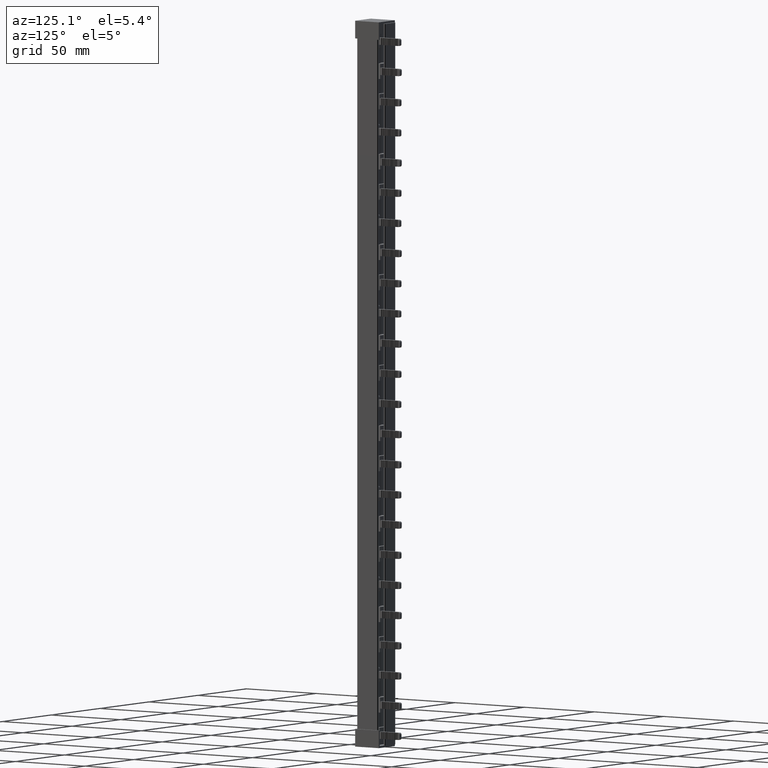
[diagram: clean part render]
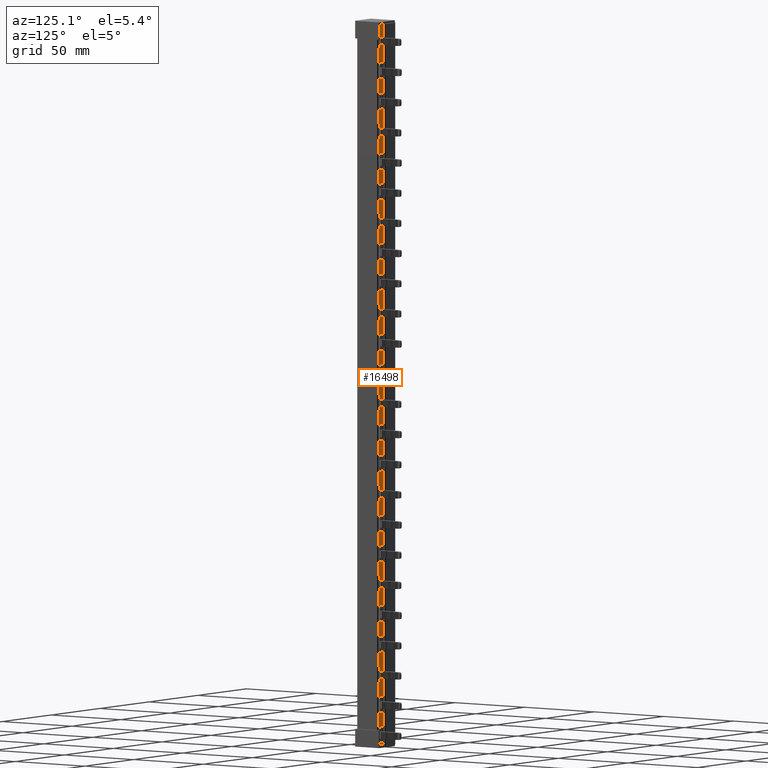
[diagram: same view with one face highlighted and labeled with its STEP entity id]
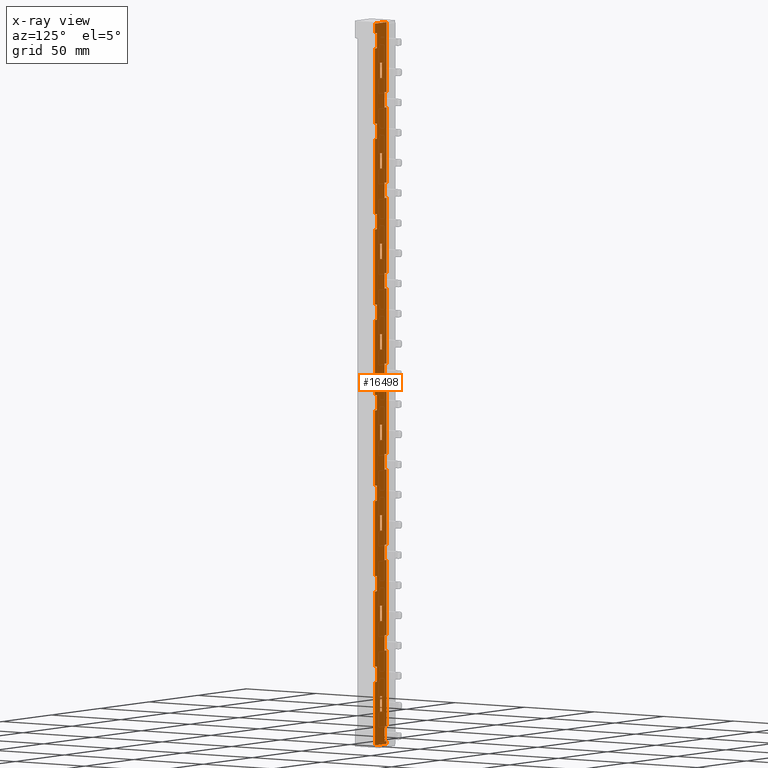
[diagram: x-ray of the same camera — body ghosted, the highlighted face saturated]
A machine part, auxiliary view. The second image highlights one B-rep face of the part: STEP entity #16498.
The next image is the same camera in x-ray: the body ghosted, the highlighted face saturated — about 0% of this face is hidden behind the body in this view.
In plain terms, the highlighted planar face has unit normal (0, -1, 0).
Its self-contained STEP definition (entity closure, byte-faithful):
#2613 = VECTOR ( 'NONE', #3913, 1000.000000000000000 ) ;
#2828 = VECTOR ( 'NONE', #3952, 1000.000000000000000 ) ;
#2878 = VECTOR ( 'NONE', #3926, 1000.000000000000000 ) ;
#2885 = VECTOR ( 'NONE', #3956, 1000.000000000000000 ) ;
#2886 = VECTOR ( 'NONE', #3990, 1000.000000000000000 ) ;
#2887 = VECTOR ( 'NONE', #3998, 1000.000000000000000 ) ;
#2888 = VECTOR ( 'NONE', #3960, 1000.000000000000000 ) ;
#2892 = VECTOR ( 'NONE', #3980, 1000.000000000000000 ) ;
#2893 = VECTOR ( 'NONE', #4123, 1000.000000000000000 ) ;
#2894 = VECTOR ( 'NONE', #4126, 1000.000000000000000 ) ;
#2896 = VECTOR ( 'NONE', #3995, 1000.000000000000000 ) ;
#2902 = VECTOR ( 'NONE', #3987, 1000.000000000000000 ) ;
#2903 = VECTOR ( 'NONE', #4068, 1000.000000000000000 ) ;
#2904 = VECTOR ( 'NONE', #4059, 1000.000000000000000 ) ;
#2907 = VECTOR ( 'NONE', #4051, 1000.000000000000000 ) ;
#2910 = VECTOR ( 'NONE', #4070, 1000.000000000000000 ) ;
#2911 = VECTOR ( 'NONE', #3996, 1000.000000000000000 ) ;
#2913 = VECTOR ( 'NONE', #4037, 1000.000000000000000 ) ;
#2916 = VECTOR ( 'NONE', #4047, 1000.000000000000000 ) ;
#2919 = VECTOR ( 'NONE', #4069, 1000.000000000000000 ) ;
#2920 = VECTOR ( 'NONE', #4099, 1000.000000000000000 ) ;
#2921 = VECTOR ( 'NONE', #4081, 1000.000000000000000 ) ;
#2922 = VECTOR ( 'NONE', #4097, 1000.000000000000000 ) ;
#2924 = VECTOR ( 'NONE', #4127, 1000.000000000000000 ) ;
#2926 = VECTOR ( 'NONE', #4107, 1000.000000000000000 ) ;
#2927 = VECTOR ( 'NONE', #4040, 1000.000000000000000 ) ;
#2928 = VECTOR ( 'NONE', #4091, 1000.000000000000000 ) ;
#2930 = VECTOR ( 'NONE', #4103, 1000.000000000000000 ) ;
#2932 = VECTOR ( 'NONE', #3962, 1000.000000000000000 ) ;
#2933 = VECTOR ( 'NONE', #4155, 1000.000000000000000 ) ;
#2936 = VECTOR ( 'NONE', #4141, 1000.000000000000000 ) ;
#2943 = VECTOR ( 'NONE', #3948, 1000.000000000000000 ) ;
#2944 = VECTOR ( 'NONE', #4012, 1000.000000000000000 ) ;
#2945 = VECTOR ( 'NONE', #4084, 1000.000000000000000 ) ;
#2946 = VECTOR ( 'NONE', #4087, 1000.000000000000000 ) ;
#2955 = VECTOR ( 'NONE', #4200, 1000.000000000000000 ) ;
#2957 = VECTOR ( 'NONE', #4173, 1000.000000000000000 ) ;
#2959 = VECTOR ( 'NONE', #4163, 1000.000000000000000 ) ;
#2960 = VECTOR ( 'NONE', #4251, 1000.000000000000000 ) ;
#2961 = VECTOR ( 'NONE', #4198, 1000.000000000000000 ) ;
#2963 = VECTOR ( 'NONE', #4262, 1000.000000000000000 ) ;
#2965 = VECTOR ( 'NONE', #4282, 1000.000000000000000 ) ;
#2975 = VECTOR ( 'NONE', #4230, 1000.000000000000000 ) ;
#2977 = VECTOR ( 'NONE', #4187, 1000.000000000000000 ) ;
#2979 = VECTOR ( 'NONE', #4225, 1000.000000000000000 ) ;
#2981 = VECTOR ( 'NONE', #4271, 1000.000000000000000 ) ;
#2983 = VECTOR ( 'NONE', #4202, 1000.000000000000000 ) ;
#2984 = VECTOR ( 'NONE', #4190, 1000.000000000000000 ) ;
#2986 = VECTOR ( 'NONE', #4322, 1000.000000000000000 ) ;
#2989 = VECTOR ( 'NONE', #4169, 1000.000000000000000 ) ;
#2991 = VECTOR ( 'NONE', #4147, 1000.000000000000000 ) ;
#2996 = VECTOR ( 'NONE', #4197, 1000.000000000000000 ) ;
#2997 = VECTOR ( 'NONE', #4286, 1000.000000000000000 ) ;
#2999 = VECTOR ( 'NONE', #4193, 1000.000000000000000 ) ;
#3002 = VECTOR ( 'NONE', #4314, 1000.000000000000000 ) ;
#3003 = VECTOR ( 'NONE', #4186, 1000.000000000000000 ) ;
#3006 = VECTOR ( 'NONE', #4157, 1000.000000000000000 ) ;
#3009 = VECTOR ( 'NONE', #4258, 1000.000000000000000 ) ;
#3010 = VECTOR ( 'NONE', #4273, 1000.000000000000000 ) ;
#3015 = VECTOR ( 'NONE', #4328, 1000.000000000000000 ) ;
#3023 = VECTOR ( 'NONE', #36294, 1000.000000000000000 ) ;
#3024 = VECTOR ( 'NONE', #4289, 1000.000000000000000 ) ;
#3025 = VECTOR ( 'NONE', #4361, 1000.000000000000000 ) ;
#3030 = VECTOR ( 'NONE', #3312, 1000.000000000000000 ) ;
#3037 = VECTOR ( 'NONE', #4351, 1000.000000000000000 ) ;
#3041 = VECTOR ( 'NONE', #4344, 1000.000000000000000 ) ;
#3044 = VECTOR ( 'NONE', #4337, 1000.000000000000000 ) ;
#3049 = VECTOR ( 'NONE', #3268, 1000.000000000000000 ) ;
#3055 = VECTOR ( 'NONE', #3282, 1000.000000000000000 ) ;
#3057 = VECTOR ( 'NONE', #36272, 1000.000000000000000 ) ;
#3058 = VECTOR ( 'NONE', #3291, 1000.000000000000000 ) ;
#3060 = VECTOR ( 'NONE', #4356, 1000.000000000000000 ) ;
#3070 = VECTOR ( 'NONE', #3493, 1000.000000000000000 ) ;
#3078 = VECTOR ( 'NONE', #36566, 1000.000000000000000 ) ;
#3081 = VECTOR ( 'NONE', #36532, 1000.000000000000000 ) ;
#3084 = VECTOR ( 'NONE', #36570, 1000.000000000000000 ) ;
#3086 = VECTOR ( 'NONE', #36486, 1000.000000000000000 ) ;
#3094 = VECTOR ( 'NONE', #36504, 1000.000000000000000 ) ;
#3103 = VECTOR ( 'NONE', #36312, 1000.000000000000000 ) ;
#3114 = VECTOR ( 'NONE', #36423, 1000.000000000000000 ) ;
#3126 = VECTOR ( 'NONE', #36738, 1000.000000000000000 ) ;
#3152 = VECTOR ( 'NONE', #37463, 1000.000000000000000 ) ;
#3161 = VECTOR ( 'NONE', #36917, 1000.000000000000000 ) ;
#3166 = VECTOR ( 'NONE', #36892, 1000.000000000000000 ) ;
#3168 = VECTOR ( 'NONE', #36996, 1000.000000000000000 ) ;
#3175 = VECTOR ( 'NONE', #37039, 1000.000000000000000 ) ;
#3181 = VECTOR ( 'NONE', #37042, 1000.000000000000000 ) ;
#3183 = VECTOR ( 'NONE', #36977, 1000.000000000000000 ) ;
#3268 = DIRECTION ( 'NONE',  ( 0.0000000000000000000, -0.0000000000000000000, -1.000000000000000000 ) ) ;
#3270 = LINE ( 'NONE', #3458, #3070 ) ;
#3272 = CARTESIAN_POINT ( 'NONE',  ( 2.349999999999782500, 11.89096289031699300, -210.0099999999999600 ) ) ;
#3282 = DIRECTION ( 'NONE',  ( -0.0000000000000000000, 0.0000000000000000000, 1.000000000000000000 ) ) ;
#3290 = CARTESIAN_POINT ( 'NONE',  ( -0.1500000000001920900, 11.89096289031699200, -91.08999999999981900 ) ) ;
#3291 = DIRECTION ( 'NONE',  ( 1.000000000000000000, 8.673617379884144900E-016, 0.0000000000000000000 ) ) ;
#3299 = LINE ( 'NONE', #3272, #3049 ) ;
#3304 = LINE ( 'NONE', #3290, #3058 ) ;
#3309 = CARTESIAN_POINT ( 'NONE',  ( 0.3499999999998170100, 11.89096289031699200, -210.0099999999999600 ) ) ;
#3311 = LINE ( 'NONE', #3309, #3030 ) ;
#3312 = DIRECTION ( 'NONE',  ( -0.0000000000000000000, 0.0000000000000000000, 1.000000000000000000 ) ) ;
#3458 = CARTESIAN_POINT ( 'NONE',  ( 0.3499999999998171200, 11.89096289031699200, -210.0099999999999600 ) ) ;
#3493 = DIRECTION ( 'NONE',  ( -0.0000000000000000000, 0.0000000000000000000, 1.000000000000000000 ) ) ;
#3913 = DIRECTION ( 'NONE',  ( -1.000000000000000000, -8.673617379884144900E-016, -0.0000000000000000000 ) ) ;
#3918 = LINE ( 'NONE', #3928, #2613 ) ;
#3922 = LINE ( 'NONE', #3923, #2878 ) ;
#3923 = CARTESIAN_POINT ( 'NONE',  ( 7.000000000000006200, 11.89096289031699900, -210.0099999999999600 ) ) ;
#3926 = DIRECTION ( 'NONE',  ( 0.0000000000000000000, -0.0000000000000000000, -1.000000000000000000 ) ) ;
#3928 = CARTESIAN_POINT ( 'NONE',  ( -0.1500000000001920900, 11.89096289031699200, 42.58000000000000500 ) ) ;
#3946 = LINE ( 'NONE', #3986, #2828 ) ;
#3947 = CARTESIAN_POINT ( 'NONE',  ( -0.1500000000001920900, 11.89096289031699200, 87.24500000000023200 ) ) ;
#3948 = DIRECTION ( 'NONE',  ( 1.000000000000000000, 8.673617379884144900E-016, 0.0000000000000000000 ) ) ;
#3950 = LINE ( 'NONE', #3973, #2888 ) ;
#3952 = DIRECTION ( 'NONE',  ( 1.000000000000000000, 8.673617379884144900E-016, 0.0000000000000000000 ) ) ;
#3954 = LINE ( 'NONE', #3970, #2885 ) ;
#3956 = DIRECTION ( 'NONE',  ( -1.000000000000000000, -8.673617379884144900E-016, -0.0000000000000000000 ) ) ;
#3960 = DIRECTION ( 'NONE',  ( -0.0000000000000000000, 0.0000000000000000000, 1.000000000000000000 ) ) ;
#3962 = DIRECTION ( 'NONE',  ( 1.000000000000000000, 8.673617379884144900E-016, 0.0000000000000000000 ) ) ;
#3963 = CARTESIAN_POINT ( 'NONE',  ( -0.1500000000001920900, 11.89096289031699200, -180.2549999999997400 ) ) ;
#3970 = CARTESIAN_POINT ( 'NONE',  ( -0.1500000000001920900, 11.89096289031699200, -117.9200000000000600 ) ) ;
#3971 = CARTESIAN_POINT ( 'NONE',  ( 7.000000000000006200, 11.89096289031699900, -210.0099999999999600 ) ) ;
#3973 = CARTESIAN_POINT ( 'NONE',  ( 5.000000000000252200, 11.89096289031699700, -210.0099999999999600 ) ) ;
#3974 = LINE ( 'NONE', #3984, #2902 ) ;
#3979 = LINE ( 'NONE', #3947, #2943 ) ;
#3980 = DIRECTION ( 'NONE',  ( 1.000000000000000000, 8.673617379884144900E-016, 0.0000000000000000000 ) ) ;
#3981 = CARTESIAN_POINT ( 'NONE',  ( -0.1500000000001920900, 11.89096289031699200, 194.2450000000002900 ) ) ;
#3982 = LINE ( 'NONE', #3971, #2896 ) ;
#3983 = LINE ( 'NONE', #3981, #2932 ) ;
#3984 = CARTESIAN_POINT ( 'NONE',  ( 2.349999999999782500, 11.89096289031699300, -210.0099999999999600 ) ) ;
#3985 = LINE ( 'NONE', #3988, #2886 ) ;
#3986 = CARTESIAN_POINT ( 'NONE',  ( -0.1500000000001920900, 11.89096289031699200, -108.9200000000000200 ) ) ;
#3987 = DIRECTION ( 'NONE',  ( 0.0000000000000000000, -0.0000000000000000000, -1.000000000000000000 ) ) ;
#3988 = CARTESIAN_POINT ( 'NONE',  ( -0.1500000000001920900, 11.89096289031699200, -189.2549999999998000 ) ) ;
#3990 = DIRECTION ( 'NONE',  ( -1.000000000000000000, -8.673617379884144900E-016, -0.0000000000000000000 ) ) ;
#3991 = LINE ( 'NONE', #4014, #2927 ) ;
#3993 = LINE ( 'NONE', #3963, #2892 ) ;
#3995 = DIRECTION ( 'NONE',  ( 0.0000000000000000000, -0.0000000000000000000, -1.000000000000000000 ) ) ;
#3996 = DIRECTION ( 'NONE',  ( -0.0000000000000000000, 0.0000000000000000000, 1.000000000000000000 ) ) ;
#3997 = LINE ( 'NONE', #4026, #2887 ) ;
#3998 = DIRECTION ( 'NONE',  ( -0.0000000000000000000, 0.0000000000000000000, 1.000000000000000000 ) ) ;
#4005 = CARTESIAN_POINT ( 'NONE',  ( 10.35637477970041700, 11.89096289031700100, -210.0099999999999600 ) ) ;
#4012 = DIRECTION ( 'NONE',  ( 0.0000000000000000000, -0.0000000000000000000, -1.000000000000000000 ) ) ;
#4014 = CARTESIAN_POINT ( 'NONE',  ( 12.35637477970041900, 11.89096289031700200, -210.0099999999999600 ) ) ;
#4015 = LINE ( 'NONE', #4024, #2944 ) ;
#4016 = LINE ( 'NONE', #4005, #2911 ) ;
#4024 = CARTESIAN_POINT ( 'NONE',  ( 12.35637477970041900, 11.89096289031700200, -210.0099999999999600 ) ) ;
#4026 = CARTESIAN_POINT ( 'NONE',  ( 10.35637477970041700, 11.89096289031700100, -210.0099999999999600 ) ) ;
#4029 = LINE ( 'NONE', #4086, #2904 ) ;
#4034 = LINE ( 'NONE', #4036, #2913 ) ;
#4036 = CARTESIAN_POINT ( 'NONE',  ( 12.35637477970041900, 11.89096289031700200, -210.0099999999999600 ) ) ;
#4037 = DIRECTION ( 'NONE',  ( 0.0000000000000000000, -0.0000000000000000000, -1.000000000000000000 ) ) ;
#4038 = LINE ( 'NONE', #4089, #2903 ) ;
#4040 = DIRECTION ( 'NONE',  ( 0.0000000000000000000, -0.0000000000000000000, -1.000000000000000000 ) ) ;
#4043 = CARTESIAN_POINT ( 'NONE',  ( 10.35637477970041700, 11.89096289031700100, -210.0099999999999600 ) ) ;
#4045 = CARTESIAN_POINT ( 'NONE',  ( 5.097613484512724100, 11.89096289031699700, -210.0099999999999600 ) ) ;
#4046 = LINE ( 'NONE', #4058, #2945 ) ;
#4047 = DIRECTION ( 'NONE',  ( -0.0000000000000000000, 0.0000000000000000000, 1.000000000000000000 ) ) ;
#4049 = LINE ( 'NONE', #4045, #2907 ) ;
#4050 = CARTESIAN_POINT ( 'NONE',  ( 0.3499999999998170100, 11.89096289031699200, -210.0099999999999600 ) ) ;
#4051 = DIRECTION ( 'NONE',  ( -0.0000000000000000000, 0.0000000000000000000, 1.000000000000000000 ) ) ;
#4052 = LINE ( 'NONE', #4050, #2910 ) ;
#4053 = CARTESIAN_POINT ( 'NONE',  ( 12.35637477970041900, 11.89096289031700200, -210.0099999999999600 ) ) ;
#4058 = CARTESIAN_POINT ( 'NONE',  ( -0.1500000000001920900, 11.89096289031699200, 96.07999999999999800 ) ) ;
#4059 = DIRECTION ( 'NONE',  ( 0.0000000000000000000, -0.0000000000000000000, -1.000000000000000000 ) ) ;
#4060 = LINE ( 'NONE', #4043, #2919 ) ;
#4062 = LINE ( 'NONE', #4063, #2916 ) ;
#4063 = CARTESIAN_POINT ( 'NONE',  ( 10.35637477970041700, 11.89096289031700100, -210.0099999999999600 ) ) ;
#4068 = DIRECTION ( 'NONE',  ( -0.0000000000000000000, 0.0000000000000000000, 1.000000000000000000 ) ) ;
#4069 = DIRECTION ( 'NONE',  ( -0.0000000000000000000, 0.0000000000000000000, 1.000000000000000000 ) ) ;
#4070 = DIRECTION ( 'NONE',  ( -0.0000000000000000000, 0.0000000000000000000, 1.000000000000000000 ) ) ;
#4073 = LINE ( 'NONE', #4053, #2946 ) ;
#4078 = LINE ( 'NONE', #4080, #2921 ) ;
#4079 = LINE ( 'NONE', #4082, #2920 ) ;
#4080 = CARTESIAN_POINT ( 'NONE',  ( -0.1500000000001920900, 11.89096289031699200, 105.0800000000000100 ) ) ;
#4081 = DIRECTION ( 'NONE',  ( 1.000000000000000000, 8.673617379884144900E-016, 0.0000000000000000000 ) ) ;
#4082 = CARTESIAN_POINT ( 'NONE',  ( -0.1500000000001920900, 11.89096289031699200, 212.0799999999999800 ) ) ;
#4084 = DIRECTION ( 'NONE',  ( -1.000000000000000000, -8.673617379884144900E-016, -0.0000000000000000000 ) ) ;
#4086 = CARTESIAN_POINT ( 'NONE',  ( 7.000000000000006200, 11.89096289031699900, -210.0099999999999600 ) ) ;
#4087 = DIRECTION ( 'NONE',  ( 0.0000000000000000000, -0.0000000000000000000, -1.000000000000000000 ) ) ;
#4089 = CARTESIAN_POINT ( 'NONE',  ( 0.3499999999998170100, 11.89096289031699200, -210.0099999999999600 ) ) ;
#4090 = CARTESIAN_POINT ( 'NONE',  ( 5.000000000000252200, 11.89096289031699700, -210.0099999999999600 ) ) ;
#4091 = DIRECTION ( 'NONE',  ( -1.000000000000000000, -8.673617379884144900E-016, -0.0000000000000000000 ) ) ;
#4093 = LINE ( 'NONE', #4175, #2957 ) ;
#4094 = CARTESIAN_POINT ( 'NONE',  ( -0.1500000000001920900, 11.89096289031699200, -135.7549999999997400 ) ) ;
#4097 = DIRECTION ( 'NONE',  ( 0.0000000000000000000, -0.0000000000000000000, -1.000000000000000000 ) ) ;
#4099 = DIRECTION ( 'NONE',  ( 1.000000000000000000, 8.673617379884144900E-016, 0.0000000000000000000 ) ) ;
#4101 = LINE ( 'NONE', #4094, #2930 ) ;
#4103 = DIRECTION ( 'NONE',  ( -1.000000000000000000, -8.673617379884144900E-016, -0.0000000000000000000 ) ) ;
#4106 = LINE ( 'NONE', #4115, #2936 ) ;
#4107 = DIRECTION ( 'NONE',  ( 1.000000000000000000, 8.673617379884144900E-016, 0.0000000000000000000 ) ) ;
#4115 = CARTESIAN_POINT ( 'NONE',  ( 5.000000000000252200, 11.89096289031699700, -210.0099999999999600 ) ) ;
#4117 = CARTESIAN_POINT ( 'NONE',  ( 7.000000000000006200, 11.89096289031699900, -210.0099999999999600 ) ) ;
#4118 = LINE ( 'NONE', #4128, #2894 ) ;
#4119 = LINE ( 'NONE', #4124, #2926 ) ;
#4120 = LINE ( 'NONE', #4129, #2924 ) ;
#4121 = LINE ( 'NONE', #4090, #2893 ) ;
#4122 = LINE ( 'NONE', #4132, #2928 ) ;
#4123 = DIRECTION ( 'NONE',  ( -0.0000000000000000000, 0.0000000000000000000, 1.000000000000000000 ) ) ;
#4124 = CARTESIAN_POINT ( 'NONE',  ( -0.1500000000001920900, 11.89096289031699200, 51.58000000000001300 ) ) ;
#4126 = DIRECTION ( 'NONE',  ( -0.0000000000000000000, 0.0000000000000000000, 1.000000000000000000 ) ) ;
#4127 = DIRECTION ( 'NONE',  ( -1.000000000000000000, -8.673617379884144900E-016, -0.0000000000000000000 ) ) ;
#4128 = CARTESIAN_POINT ( 'NONE',  ( 0.3499999999998170100, 11.89096289031699200, -210.0099999999999600 ) ) ;
#4129 = CARTESIAN_POINT ( 'NONE',  ( -0.1500000000001920900, 11.89096289031699200, -28.75499999999975400 ) ) ;
#4130 = LINE ( 'NONE', #4117, #2922 ) ;
#4132 = CARTESIAN_POINT ( 'NONE',  ( -0.1500000000001920900, 11.89096289031699200, 149.5799999999999800 ) ) ;
#4139 = CARTESIAN_POINT ( 'NONE',  ( -0.1500000000001920900, 11.89096289031699200, -126.7549999999997500 ) ) ;
#4141 = DIRECTION ( 'NONE',  ( -0.0000000000000000000, 0.0000000000000000000, 1.000000000000000000 ) ) ;
#4142 = CARTESIAN_POINT ( 'NONE',  ( -0.1500000000001920900, 11.89096289031699200, -171.4199999999999900 ) ) ;
#4145 = LINE ( 'NONE', #4142, #2991 ) ;
#4146 = CARTESIAN_POINT ( 'NONE',  ( -0.1500000000001920900, 11.89096289031699200, 33.74500000000024600 ) ) ;
#4147 = DIRECTION ( 'NONE',  ( -1.000000000000000000, -8.673617379884144900E-016, -0.0000000000000000000 ) ) ;
#4151 = LINE ( 'NONE', #4146, #2959 ) ;
#4154 = LINE ( 'NONE', #4139, #2933 ) ;
#4155 = DIRECTION ( 'NONE',  ( 1.000000000000000000, 8.673617379884144900E-016, 0.0000000000000000000 ) ) ;
#4157 = DIRECTION ( 'NONE',  ( 1.000000000000000000, 8.673617379884144900E-016, 0.0000000000000000000 ) ) ;
#4159 = CARTESIAN_POINT ( 'NONE',  ( 12.35637477970041900, 11.89096289031700200, -210.0099999999999600 ) ) ;
#4162 = LINE ( 'NONE', #4166, #3006 ) ;
#4163 = DIRECTION ( 'NONE',  ( 1.000000000000000000, 8.673617379884144900E-016, 0.0000000000000000000 ) ) ;
#4166 = CARTESIAN_POINT ( 'NONE',  ( -0.1500000000001920900, 11.89096289031699200, -1.920000000000005000 ) ) ;
#4168 = LINE ( 'NONE', #4159, #2989 ) ;
#4169 = DIRECTION ( 'NONE',  ( 0.0000000000000000000, -0.0000000000000000000, -1.000000000000000000 ) ) ;
#4172 = LINE ( 'NONE', #4196, #2961 ) ;
#4173 = DIRECTION ( 'NONE',  ( -0.0000000000000000000, 0.0000000000000000000, 1.000000000000000000 ) ) ;
#4175 = CARTESIAN_POINT ( 'NONE',  ( 5.000000000000252200, 11.89096289031699700, -210.0099999999999600 ) ) ;
#4182 = CARTESIAN_POINT ( 'NONE',  ( -0.1500000000001920900, 11.89096289031699200, 78.24500000000028900 ) ) ;
#4186 = DIRECTION ( 'NONE',  ( 1.000000000000000000, 8.673617379884144900E-016, 0.0000000000000000000 ) ) ;
#4187 = DIRECTION ( 'NONE',  ( 0.0000000000000000000, -0.0000000000000000000, -1.000000000000000000 ) ) ;
#4189 = LINE ( 'NONE', #4220, #2984 ) ;
#4190 = DIRECTION ( 'NONE',  ( -0.0000000000000000000, 0.0000000000000000000, 1.000000000000000000 ) ) ;
#4191 = CARTESIAN_POINT ( 'NONE',  ( -0.1500000000001920900, 11.89096289031699200, 24.74500000000026700 ) ) ;
#4193 = DIRECTION ( 'NONE',  ( -1.000000000000000000, -8.673617379884144900E-016, -0.0000000000000000000 ) ) ;
#4196 = CARTESIAN_POINT ( 'NONE',  ( -0.1500000000001920900, 11.89096289031699200, -19.75499999999974700 ) ) ;
#4197 = DIRECTION ( 'NONE',  ( 0.0000000000000000000, -0.0000000000000000000, -1.000000000000000000 ) ) ;
#4198 = DIRECTION ( 'NONE',  ( 1.000000000000000000, 8.673617379884144900E-016, 0.0000000000000000000 ) ) ;
#4199 = CARTESIAN_POINT ( 'NONE',  ( 5.000000000000252200, 11.89096289031699700, -210.0099999999999600 ) ) ;
#4200 = DIRECTION ( 'NONE',  ( -0.0000000000000000000, 0.0000000000000000000, 1.000000000000000000 ) ) ;
#4201 = LINE ( 'NONE', #4182, #2983 ) ;
#4202 = DIRECTION ( 'NONE',  ( -1.000000000000000000, -8.673617379884144900E-016, -0.0000000000000000000 ) ) ;
#4207 = LINE ( 'NONE', #4229, #3003 ) ;
#4210 = CARTESIAN_POINT ( 'NONE',  ( 10.35637477970041700, 11.89096289031700100, -210.0099999999999600 ) ) ;
#4212 = LINE ( 'NONE', #4210, #2979 ) ;
#4215 = CARTESIAN_POINT ( 'NONE',  ( 7.000000000000006200, 11.89096289031699900, -210.0099999999999600 ) ) ;
#4216 = LINE ( 'NONE', #4226, #2977 ) ;
#4217 = LINE ( 'NONE', #4215, #2996 ) ;
#4220 = CARTESIAN_POINT ( 'NONE',  ( 10.35637477970041700, 11.89096289031700100, -210.0099999999999600 ) ) ;
#4221 = LINE ( 'NONE', #4191, #2999 ) ;
#4222 = LINE ( 'NONE', #4199, #2955 ) ;
#4225 = DIRECTION ( 'NONE',  ( -0.0000000000000000000, 0.0000000000000000000, 1.000000000000000000 ) ) ;
#4226 = CARTESIAN_POINT ( 'NONE',  ( 7.000000000000006200, 11.89096289031699900, -210.0099999999999600 ) ) ;
#4229 = CARTESIAN_POINT ( 'NONE',  ( -0.1500000000001920900, 11.89096289031699200, -73.25499999999974000 ) ) ;
#4230 = DIRECTION ( 'NONE',  ( 1.000000000000000000, 8.673617379884144900E-016, 0.0000000000000000000 ) ) ;
#4231 = LINE ( 'NONE', #4248, #3009 ) ;
#4232 = LINE ( 'NONE', #4247, #2981 ) ;
#4235 = CARTESIAN_POINT ( 'NONE',  ( -0.1500000000001920900, 11.89096289031699200, -82.25499999999974000 ) ) ;
#4237 = LINE ( 'NONE', #4261, #2963 ) ;
#4240 = CARTESIAN_POINT ( 'NONE',  ( -0.1500000000001920900, 11.89096289031699200, -162.4200000000000200 ) ) ;
#4246 = LINE ( 'NONE', #4235, #2960 ) ;
#4247 = CARTESIAN_POINT ( 'NONE',  ( 5.000000000000252200, 11.89096289031699700, -210.0099999999999600 ) ) ;
#4248 = CARTESIAN_POINT ( 'NONE',  ( 10.35637477970041700, 11.89096289031700100, -210.0099999999999600 ) ) ;
#4251 = DIRECTION ( 'NONE',  ( -1.000000000000000000, -8.673617379884144900E-016, -0.0000000000000000000 ) ) ;
#4254 = LINE ( 'NONE', #4240, #2975 ) ;
#4258 = DIRECTION ( 'NONE',  ( -0.0000000000000000000, 0.0000000000000000000, 1.000000000000000000 ) ) ;
#4261 = CARTESIAN_POINT ( 'NONE',  ( 7.000000000000006200, 11.89096289031699900, -210.0099999999999600 ) ) ;
#4262 = DIRECTION ( 'NONE',  ( 0.0000000000000000000, -0.0000000000000000000, -1.000000000000000000 ) ) ;
#4265 = LINE ( 'NONE', #4310, #2997 ) ;
#4270 = LINE ( 'NONE', #4272, #3010 ) ;
#4271 = DIRECTION ( 'NONE',  ( -0.0000000000000000000, 0.0000000000000000000, 1.000000000000000000 ) ) ;
#4272 = CARTESIAN_POINT ( 'NONE',  ( 12.35637477970041900, 11.89096289031700200, -210.0099999999999600 ) ) ;
#4273 = DIRECTION ( 'NONE',  ( 0.0000000000000000000, -0.0000000000000000000, -1.000000000000000000 ) ) ;
#4281 = LINE ( 'NONE', #4294, #2986 ) ;
#4282 = DIRECTION ( 'NONE',  ( -0.0000000000000000000, 0.0000000000000000000, 1.000000000000000000 ) ) ;
#4286 = DIRECTION ( 'NONE',  ( 0.0000000000000000000, -0.0000000000000000000, -1.000000000000000000 ) ) ;
#4287 = CARTESIAN_POINT ( 'NONE',  ( 2.349999999999782500, 11.89096289031699300, -210.0099999999999600 ) ) ;
#4289 = DIRECTION ( 'NONE',  ( 0.0000000000000000000, -0.0000000000000000000, -1.000000000000000000 ) ) ;
#4292 = CARTESIAN_POINT ( 'NONE',  ( -0.1500000000001920900, 11.89096289031699200, -55.41999999999999500 ) ) ;
#4294 = CARTESIAN_POINT ( 'NONE',  ( -0.1500000000001920900, 11.89096289031699200, 185.2450000000002600 ) ) ;
#4295 = CARTESIAN_POINT ( 'NONE',  ( -0.1500000000001920900, 11.89096289031699200, 158.5800000000000100 ) ) ;
#4296 = LINE ( 'NONE', #4303, #2965 ) ;
#4302 = LINE ( 'NONE', #4295, #3002 ) ;
#4303 = CARTESIAN_POINT ( 'NONE',  ( 0.3499999999998170100, 11.89096289031699200, -210.0099999999999600 ) ) ;
#4306 = LINE ( 'NONE', #4287, #3024 ) ;
#4310 = CARTESIAN_POINT ( 'NONE',  ( 2.349999999999782500, 11.89096289031699300, -210.0099999999999600 ) ) ;
#4312 = LINE ( 'NONE', #4364, #3041 ) ;
#4313 = LINE ( 'NONE', #4292, #3025 ) ;
#4314 = DIRECTION ( 'NONE',  ( 1.000000000000000000, 8.673617379884144900E-016, 0.0000000000000000000 ) ) ;
#4322 = DIRECTION ( 'NONE',  ( -1.000000000000000000, -8.673617379884144900E-016, -0.0000000000000000000 ) ) ;
#4328 = DIRECTION ( 'NONE',  ( 0.0000000000000000000, -0.0000000000000000000, -1.000000000000000000 ) ) ;
#4330 = LINE ( 'NONE', #4350, #3037 ) ;
#4332 = CARTESIAN_POINT ( 'NONE',  ( -0.1500000000001920900, 11.89096289031699200, 122.9100000000001800 ) ) ;
#4337 = DIRECTION ( 'NONE',  ( 1.000000000000000000, 8.673617379884144900E-016, 0.0000000000000000000 ) ) ;
#4340 = CARTESIAN_POINT ( 'NONE',  ( 10.35637477970041700, 11.89096289031700100, -210.0099999999999600 ) ) ;
#4343 = LINE ( 'NONE', #4360, #3015 ) ;
#4344 = DIRECTION ( 'NONE',  ( -1.000000000000000000, -8.673617379884144900E-016, -0.0000000000000000000 ) ) ;
#4345 = CARTESIAN_POINT ( 'NONE',  ( 0.3499999999998170100, 11.89096289031699200, -210.0099999999999600 ) ) ;
#4350 = CARTESIAN_POINT ( 'NONE',  ( -0.1500000000001920900, 11.89096289031699200, -64.42000000000000200 ) ) ;
#4351 = DIRECTION ( 'NONE',  ( -1.000000000000000000, -8.673617379884144900E-016, -0.0000000000000000000 ) ) ;
#4352 = LINE ( 'NONE', #4345, #3060 ) ;
#4355 = LINE ( 'NONE', #4340, #3055 ) ;
#4356 = DIRECTION ( 'NONE',  ( -0.0000000000000000000, 0.0000000000000000000, 1.000000000000000000 ) ) ;
#4360 = CARTESIAN_POINT ( 'NONE',  ( 2.349999999999782500, 11.89096289031699300, -210.0099999999999600 ) ) ;
#4361 = DIRECTION ( 'NONE',  ( 1.000000000000000000, 8.673617379884144900E-016, 0.0000000000000000000 ) ) ;
#4363 = LINE ( 'NONE', #4332, #3044 ) ;
#4364 = CARTESIAN_POINT ( 'NONE',  ( -0.1500000000001920900, 11.89096289031699200, -10.92000000000001200 ) ) ;
#7675 = EDGE_CURVE ( 'NONE', #25947, #25905, #13976, .T. ) ;
#7717 = EDGE_CURVE ( 'NONE', #38394, #25947, #14124, .T. ) ;
#7759 = EDGE_CURVE ( 'NONE', #25905, #41592, #14268, .T. ) ;
#8132 = EDGE_CURVE ( 'NONE', #41604, #41649, #17215, .T. ) ;
#8135 = EDGE_CURVE ( 'NONE', #41619, #41656, #17190, .T. ) ;
#8166 = EDGE_CURVE ( 'NONE', #41597, #41663, #11492, .T. ) ;
#8177 = EDGE_CURVE ( 'NONE', #41626, #41654, #11509, .T. ) ;
#8180 = EDGE_CURVE ( 'NONE', #41667, #41621, #11511, .T. ) ;
#8181 = EDGE_CURVE ( 'NONE', #41664, #41614, #11518, .T. ) ;
#8183 = EDGE_CURVE ( 'NONE', #41593, #41609, #11536, .T. ) ;
#8184 = EDGE_CURVE ( 'NONE', #41662, #41615, #11528, .T. ) ;
#8187 = EDGE_CURVE ( 'NONE', #41614, #41667, #11570, .T. ) ;
#11450 = DIRECTION ( 'NONE',  ( 0.0000000000000000000, -0.0000000000000000000, -1.000000000000000000 ) ) ;
#11492 = LINE ( 'NONE', #11494, #33083 ) ;
#11494 = CARTESIAN_POINT ( 'NONE',  ( 2.349999999999782500, 11.89096289031699300, -210.0099999999999600 ) ) ;
#11498 = CARTESIAN_POINT ( 'NONE',  ( -0.1500000000001920900, 11.89096289031699200, 203.0799999999999800 ) ) ;
#11500 = CARTESIAN_POINT ( 'NONE',  ( 5.000000000000252200, 11.89096289031699700, -210.0099999999999600 ) ) ;
#11502 = DIRECTION ( 'NONE',  ( -1.000000000000000000, -8.673617379884144900E-016, -0.0000000000000000000 ) ) ;
#11509 = LINE ( 'NONE', #11529, #33099 ) ;
#11511 = LINE ( 'NONE', #11521, #33170 ) ;
#11518 = LINE ( 'NONE', #11532, #33156 ) ;
#11519 = DIRECTION ( 'NONE',  ( 0.0000000000000000000, -0.0000000000000000000, -1.000000000000000000 ) ) ;
#11521 = CARTESIAN_POINT ( 'NONE',  ( -0.1500000000001920900, 11.89096289031699200, 131.7450000000002900 ) ) ;
#11528 = LINE ( 'NONE', #11500, #33154 ) ;
#11529 = CARTESIAN_POINT ( 'NONE',  ( 2.349999999999782500, 11.89096289031699300, -210.0099999999999600 ) ) ;
#11532 = CARTESIAN_POINT ( 'NONE',  ( -0.1500000000001920900, 11.89096289031699200, 140.7450000000002900 ) ) ;
#11534 = DIRECTION ( 'NONE',  ( 1.000000000000000000, 8.673617379884144900E-016, 0.0000000000000000000 ) ) ;
#11536 = LINE ( 'NONE', #11498, #33160 ) ;
#11537 = DIRECTION ( 'NONE',  ( -1.000000000000000000, -8.673617379884144900E-016, -0.0000000000000000000 ) ) ;
#11559 = DIRECTION ( 'NONE',  ( -0.0000000000000000000, 0.0000000000000000000, 1.000000000000000000 ) ) ;
#11570 = LINE ( 'NONE', #11587, #33142 ) ;
#11587 = CARTESIAN_POINT ( 'NONE',  ( 7.000000000000006200, 11.89096289031699900, -210.0099999999999600 ) ) ;
#11590 = DIRECTION ( 'NONE',  ( 0.0000000000000000000, -0.0000000000000000000, -1.000000000000000000 ) ) ;
#13969 = CARTESIAN_POINT ( 'NONE',  ( 0.3259999999999165800, 11.89096289031698800, 219.0000000000000000 ) ) ;
#13976 = LINE ( 'NONE', #13969, #40551 ) ;
#13996 = DIRECTION ( 'NONE',  ( 0.0000000000000000000, 0.0000000000000000000, 1.000000000000000000 ) ) ;
#14100 = CARTESIAN_POINT ( 'NONE',  ( 13.86600000010872900, 11.89096289031699300, -208.8000000000516500 ) ) ;
#14109 = DIRECTION ( 'NONE',  ( -1.000000000000000000, 0.0000000000000000000, -4.965472477636011600E-013 ) ) ;
#14124 = LINE ( 'NONE', #14100, #40534 ) ;
#14254 = DIRECTION ( 'NONE',  ( 1.000000000000000000, 0.0000000000000000000, -4.965472477636011600E-013 ) ) ;
#14260 = CARTESIAN_POINT ( 'NONE',  ( 13.86600000010872900, 11.89096289031698800, 217.8000000000516800 ) ) ;
#14268 = LINE ( 'NONE', #14260, #40627 ) ;
#15906 = CARTESIAN_POINT ( 'NONE',  ( 12.42637477969875300, 11.89096289031699700, -208.8000000000523900 ) ) ;
#16023 = CARTESIAN_POINT ( 'NONE',  ( 7.000000000000006200, 11.89096289031699500, -126.7549999999997500 ) ) ;
#16025 = CARTESIAN_POINT ( 'NONE',  ( 12.35637477970041900, 11.89096289031699900, -162.4200000000000200 ) ) ;
#16028 = CARTESIAN_POINT ( 'NONE',  ( 10.35637477970041700, 11.89096289031699700, 96.07999999999999800 ) ) ;
#16030 = CARTESIAN_POINT ( 'NONE',  ( 7.000000000000006200, 11.89096289031699500, -19.75499999999975000 ) ) ;
#16033 = CARTESIAN_POINT ( 'NONE',  ( 7.000000000000006200, 11.89096289031699700, 33.74500000000025300 ) ) ;
#16035 = CARTESIAN_POINT ( 'NONE',  ( 0.3499999999998129600, 11.89096289031699200, 60.41000000000018800 ) ) ;
#16037 = CARTESIAN_POINT ( 'NONE',  ( 10.35637477970041700, 11.89096289031699700, -10.92000000000001200 ) ) ;
#16039 = CARTESIAN_POINT ( 'NONE',  ( 7.000000000000006200, 11.89096289031699700, -28.75499999999975400 ) ) ;
#16053 = CARTESIAN_POINT ( 'NONE',  ( 2.349999999999782500, 11.89096289031699300, 6.910000000000166200 ) ) ;
#16054 = CARTESIAN_POINT ( 'NONE',  ( 2.349999999999782500, 11.89096289031699300, 167.4100000000001700 ) ) ;
#16056 = CARTESIAN_POINT ( 'NONE',  ( 10.35637477970041700, 11.89096289031699900, -162.4200000000000200 ) ) ;
#16058 = CARTESIAN_POINT ( 'NONE',  ( 7.000000000000006200, 11.89096289031699700, 194.2450000000003200 ) ) ;
#16060 = CARTESIAN_POINT ( 'NONE',  ( 7.000000000000006200, 11.89096289031699700, 87.24500000000023200 ) ) ;
#16061 = CARTESIAN_POINT ( 'NONE',  ( 0.3499999999998095700, 11.89096289031699200, 15.91000000000018100 ) ) ;
#16068 = CARTESIAN_POINT ( 'NONE',  ( 12.35637477970041900, 11.89096289031700100, 158.5800000000000100 ) ) ;
#16072 = CARTESIAN_POINT ( 'NONE',  ( 7.000000000000006200, 11.89096289031699500, -73.25499999999975400 ) ) ;
#16074 = CARTESIAN_POINT ( 'NONE',  ( 0.3499999999998129600, 11.89096289031699200, -153.5899999999998300 ) ) ;
#16077 = CARTESIAN_POINT ( 'NONE',  ( 10.35637477970041700, 11.89096289031699700, -64.42000000000000200 ) ) ;
#16079 = CARTESIAN_POINT ( 'NONE',  ( 7.000000000000006200, 11.89096289031699700, -82.25499999999974000 ) ) ;
#16085 = CARTESIAN_POINT ( 'NONE',  ( 0.3499999999998129600, 11.89096289031699200, 6.910000000000166200 ) ) ;
#16087 = CARTESIAN_POINT ( 'NONE',  ( 0.3499999999998095700, 11.89096289031699200, -144.5899999999998300 ) ) ;
#16090 = CARTESIAN_POINT ( 'NONE',  ( 5.000000000000248700, 11.89096289031699500, 33.74500000000024600 ) ) ;
#16092 = CARTESIAN_POINT ( 'NONE',  ( 10.35637477970041700, 11.89096289031699300, -1.920000000000005000 ) ) ;
#16094 = CARTESIAN_POINT ( 'NONE',  ( 5.000000000000250500, 11.89096289031699500, 24.74500000000023900 ) ) ;
#16095 = CARTESIAN_POINT ( 'NONE',  ( 12.35637477970041900, 11.89096289031700100, -10.92000000000001200 ) ) ;
#16097 = CARTESIAN_POINT ( 'NONE',  ( 10.35637477970041700, 11.89096289031699300, -55.42000000000000900 ) ) ;
#16099 = CARTESIAN_POINT ( 'NONE',  ( 5.000000000000250500, 11.89096289031699500, 78.24500000000027500 ) ) ;
#16101 = CARTESIAN_POINT ( 'NONE',  ( 5.000000000000248700, 11.89096289031699500, 87.24500000000026000 ) ) ;
#16106 = CARTESIAN_POINT ( 'NONE',  ( 10.35637477970041700, 11.89096289031699500, 149.5799999999999800 ) ) ;
#16113 = CARTESIAN_POINT ( 'NONE',  ( 12.35637477970041900, 11.89096289031700100, -55.42000000000000200 ) ) ;
#16118 = CARTESIAN_POINT ( 'NONE',  ( 10.35637477970041700, 11.89096289031699900, 158.5800000000000100 ) ) ;
#16120 = CARTESIAN_POINT ( 'NONE',  ( 2.349999999999782500, 11.89096289031699300, 15.91000000000017400 ) ) ;
#16121 = CARTESIAN_POINT ( 'NONE',  ( 5.000000000000237100, 11.89096289031699500, -19.75499999999974700 ) ) ;
#16124 = CARTESIAN_POINT ( 'NONE',  ( 12.35637477970041900, 11.89096289031700100, -171.4200000000000200 ) ) ;
#16126 = CARTESIAN_POINT ( 'NONE',  ( 5.000000000000237100, 11.89096289031699500, -126.7549999999997500 ) ) ;
#16129 = CARTESIAN_POINT ( 'NONE',  ( 5.000000000000250500, 11.89096289031699500, -28.75499999999975400 ) ) ;
#16133 = CARTESIAN_POINT ( 'NONE',  ( 2.349999999999782500, 11.89096289031699300, -153.5899999999998300 ) ) ;
#16135 = CARTESIAN_POINT ( 'NONE',  ( 10.35637477970041700, 11.89096289031699900, -171.4200000000000200 ) ) ;
#16136 = CARTESIAN_POINT ( 'NONE',  ( 2.349999999999782500, 11.89096289031699300, 113.9100000000002000 ) ) ;
#16138 = CARTESIAN_POINT ( 'NONE',  ( 5.000000000000250500, 11.89096289031699500, -135.7549999999997400 ) ) ;
#16142 = CARTESIAN_POINT ( 'NONE',  ( 0.3499999999998139600, 11.89096289031699200, 176.4100000000001700 ) ) ;
#16145 = CARTESIAN_POINT ( 'NONE',  ( 2.349999999999782500, 11.89096289031699300, -46.58999999999982600 ) ) ;
#16149 = CARTESIAN_POINT ( 'NONE',  ( 0.3499999999998095700, 11.89096289031699200, 122.9100000000001800 ) ) ;
#16150 = CARTESIAN_POINT ( 'NONE',  ( 0.3499999999998129600, 11.89096289031699200, 167.4100000000001700 ) ) ;
#16152 = CARTESIAN_POINT ( 'NONE',  ( 2.349999999999782500, 11.89096289031699300, 122.9100000000001800 ) ) ;
#16154 = CARTESIAN_POINT ( 'NONE',  ( 2.349999999999782500, 11.89096289031699300, -37.58999999999981900 ) ) ;
#16159 = CARTESIAN_POINT ( 'NONE',  ( 10.35637477970041700, 11.89096289031699900, 203.0799999999999800 ) ) ;
#16163 = CARTESIAN_POINT ( 'NONE',  ( 12.35637477970041900, 11.89096289031700100, 105.0800000000000300 ) ) ;
#16166 = CARTESIAN_POINT ( 'NONE',  ( 7.000000000000006200, 11.89096289031699700, -180.2549999999997100 ) ) ;
#16170 = CARTESIAN_POINT ( 'NONE',  ( 12.35637477970041900, 11.89096289031699900, 212.0799999999999800 ) ) ;
#16171 = CARTESIAN_POINT ( 'NONE',  ( 10.35637477970041700, 11.89096289031699700, -117.9200000000000600 ) ) ;
#16175 = CARTESIAN_POINT ( 'NONE',  ( 0.3499999999998095700, 11.89096289031699200, -37.58999999999981900 ) ) ;
#16177 = CARTESIAN_POINT ( 'NONE',  ( 10.35637477970041700, 11.89096289031699300, 51.57999999999998400 ) ) ;
#16178 = CARTESIAN_POINT ( 'NONE',  ( 2.349999999999782500, 11.89096289031699300, -198.0899999999998900 ) ) ;
#16180 = CARTESIAN_POINT ( 'NONE',  ( 12.42637477969847200, 11.89096289031699200, 217.8000000000523900 ) ) ;
#16182 = CARTESIAN_POINT ( 'NONE',  ( 5.000000000000237100, 11.89096289031699500, -73.25499999999974000 ) ) ;
#16184 = CARTESIAN_POINT ( 'NONE',  ( 7.000000000000006200, 11.89096289031699900, 140.7450000000002900 ) ) ;
#16185 = CARTESIAN_POINT ( 'NONE',  ( 0.3499999999998129600, 11.89096289031699200, -207.0899999999998600 ) ) ;
#16187 = CARTESIAN_POINT ( 'NONE',  ( 12.35637477970041900, 11.89096289031700100, -108.9200000000000200 ) ) ;
#16196 = CARTESIAN_POINT ( 'NONE',  ( 12.35637477970041900, 11.89096289031700100, 203.0800000000000100 ) ) ;
#16199 = CARTESIAN_POINT ( 'NONE',  ( 2.349999999999782500, 11.89096289031699300, 60.41000000000018800 ) ) ;
#16201 = CARTESIAN_POINT ( 'NONE',  ( 5.000000000000248700, 11.89096289031699500, -180.2549999999997400 ) ) ;
#16203 = CARTESIAN_POINT ( 'NONE',  ( 12.35637477970041900, 11.89096289031700100, -64.42000000000000200 ) ) ;
#16206 = CARTESIAN_POINT ( 'NONE',  ( 0.3499999999998129600, 11.89096289031699200, 113.9100000000001800 ) ) ;
#16208 = CARTESIAN_POINT ( 'NONE',  ( 10.35637477970041700, 11.89096289031699300, -108.9200000000000200 ) ) ;
#16212 = CARTESIAN_POINT ( 'NONE',  ( 5.097613484512724100, 11.89096289031699700, 131.7450000000002900 ) ) ;
#16213 = CARTESIAN_POINT ( 'NONE',  ( 5.000000000000250500, 11.89096289031699500, 185.2450000000002600 ) ) ;
#16215 = CARTESIAN_POINT ( 'NONE',  ( 10.35637477970041700, 11.89096289031699300, 105.0800000000000400 ) ) ;
#16217 = CARTESIAN_POINT ( 'NONE',  ( 12.35637477970041900, 11.89096289031700100, 42.57999999999999100 ) ) ;
#16219 = CARTESIAN_POINT ( 'NONE',  ( 12.35637477970041900, 11.89096289031700100, 96.07999999999999800 ) ) ;
#16220 = CARTESIAN_POINT ( 'NONE',  ( 5.000000000000250500, 11.89096289031699500, -82.25499999999974000 ) ) ;
#16222 = CARTESIAN_POINT ( 'NONE',  ( 0.3499999999998095700, 11.89096289031699200, -198.0899999999998900 ) ) ;
#16224 = CARTESIAN_POINT ( 'NONE',  ( 2.349999999999782500, 11.89096289031699300, -91.08999999999980400 ) ) ;
#16227 = CARTESIAN_POINT ( 'NONE',  ( 7.000000000000006200, 11.89096289031699900, 185.2450000000002600 ) ) ;
#16229 = CARTESIAN_POINT ( 'NONE',  ( 7.000000000000006200, 11.89096289031699900, -189.2549999999998000 ) ) ;
#16231 = CARTESIAN_POINT ( 'NONE',  ( 7.000000000000006200, 11.89096289031699700, -135.7549999999997400 ) ) ;
#16233 = CARTESIAN_POINT ( 'NONE',  ( 12.35637477970041900, 11.89096289031700100, -1.920000000000005000 ) ) ;
#16234 = CARTESIAN_POINT ( 'NONE',  ( 0.3499999999998129600, 11.89096289031699200, -100.0899999999998300 ) ) ;
#16236 = CARTESIAN_POINT ( 'NONE',  ( 12.35637477970041900, 11.89096289031700100, -117.9200000000000600 ) ) ;
#16240 = CARTESIAN_POINT ( 'NONE',  ( 10.35637477970041700, 11.89096289031699900, 212.0799999999999800 ) ) ;
#16241 = CARTESIAN_POINT ( 'NONE',  ( 10.35637477970041700, 11.89096289031699700, 42.58000000000000500 ) ) ;
#16252 = CARTESIAN_POINT ( 'NONE',  ( 5.000000000000250500, 11.89096289031699500, -189.2549999999998000 ) ) ;
#16258 = CARTESIAN_POINT ( 'NONE',  ( 2.349999999999782500, 11.89096289031699300, -144.5899999999998300 ) ) ;
#16259 = CARTESIAN_POINT ( 'NONE',  ( 0.3499999999998095700, 11.89096289031699200, -91.08999999999980400 ) ) ;
#16263 = CARTESIAN_POINT ( 'NONE',  ( 12.35637477970041900, 11.89096289031700100, 149.5799999999999800 ) ) ;
#16290 = CARTESIAN_POINT ( 'NONE',  ( 5.000000000000248700, 11.89096289031699500, 194.2450000000003200 ) ) ;
#16302 = CARTESIAN_POINT ( 'NONE',  ( 0.3499999999998129600, 11.89096289031699200, -46.58999999999982600 ) ) ;
#16304 = CARTESIAN_POINT ( 'NONE',  ( 7.000000000000006200, 11.89096289031699900, 24.74500000000025300 ) ) ;
#16306 = CARTESIAN_POINT ( 'NONE',  ( 2.349999999999782500, 11.89096289031699300, 69.41000000000019600 ) ) ;
#16313 = CARTESIAN_POINT ( 'NONE',  ( 2.349999999999782500, 11.89096289031699300, -100.0899999999998000 ) ) ;
#16315 = CARTESIAN_POINT ( 'NONE',  ( 5.097613484512724100, 11.89096289031699700, 140.7450000000002900 ) ) ;
#16317 = CARTESIAN_POINT ( 'NONE',  ( 7.000000000000006200, 11.89096289031699900, 131.7450000000002900 ) ) ;
#16320 = CARTESIAN_POINT ( 'NONE',  ( 0.3499999999998095700, 11.89096289031699200, 69.41000000000019600 ) ) ;
#16322 = CARTESIAN_POINT ( 'NONE',  ( 7.000000000000006200, 11.89096289031699900, 78.24500000000026000 ) ) ;
#16331 = CARTESIAN_POINT ( 'NONE',  ( 2.349999999999782500, 11.89096289031699300, 176.4100000000001700 ) ) ;
#16334 = CARTESIAN_POINT ( 'NONE',  ( 2.349999999999782500, 11.89096289031699300, -207.0899999999998300 ) ) ;
#16341 = CARTESIAN_POINT ( 'NONE',  ( 12.35637477970041900, 11.89096289031700100, 51.58000000000000500 ) ) ;
#16498 = ADVANCED_FACE ( 'NONE', ( #20485, #20436, #20476, #20466, #20478, #20429, #20433, #20437, #20465, #20442, #20477, #20451, #20474, #20438, #20443, #20449, #20431, #20445, #20446, #20448, #20480, #20531, #20533, #20504, #20530 ), #20489, .F. ) ;
#17181 = CARTESIAN_POINT ( 'NONE',  ( 0.3499999999998170100, 11.89096289031699200, -210.0099999999999600 ) ) ;
#17190 = LINE ( 'NONE', #17205, #33104 ) ;
#17198 = DIRECTION ( 'NONE',  ( -0.0000000000000000000, 0.0000000000000000000, 1.000000000000000000 ) ) ;
#17205 = CARTESIAN_POINT ( 'NONE',  ( 2.349999999999782500, 11.89096289031699300, -210.0099999999999600 ) ) ;
#17212 = DIRECTION ( 'NONE',  ( 0.0000000000000000000, -0.0000000000000000000, -1.000000000000000000 ) ) ;
#17215 = LINE ( 'NONE', #17181, #33084 ) ;
#20429 = FACE_BOUND ( 'NONE', #26493, .T. ) ;
#20431 = FACE_BOUND ( 'NONE', #26499, .T. ) ;
#20433 = FACE_BOUND ( 'NONE', #26428, .T. ) ;
#20436 = FACE_OUTER_BOUND ( 'NONE', #26426, .T. ) ;
#20437 = FACE_BOUND ( 'NONE', #26411, .T. ) ;
#20438 = FACE_BOUND ( 'NONE', #26473, .T. ) ;
#20442 = FACE_BOUND ( 'NONE', #26395, .T. ) ;
#20443 = FACE_BOUND ( 'NONE', #26391, .T. ) ;
#20445 = FACE_BOUND ( 'NONE', #26496, .T. ) ;
#20446 = FACE_BOUND ( 'NONE', #26447, .T. ) ;
#20448 = FACE_BOUND ( 'NONE', #26452, .T. ) ;
#20449 = FACE_BOUND ( 'NONE', #26481, .T. ) ;
#20451 = FACE_BOUND ( 'NONE', #26459, .T. ) ;
#20465 = FACE_BOUND ( 'NONE', #26386, .T. ) ;
#20466 = FACE_BOUND ( 'NONE', #26439, .T. ) ;
#20474 = FACE_BOUND ( 'NONE', #26393, .T. ) ;
#20476 = FACE_BOUND ( 'NONE', #26372, .T. ) ;
#20477 = FACE_BOUND ( 'NONE', #26477, .T. ) ;
#20478 = FACE_BOUND ( 'NONE', #26413, .T. ) ;
#20480 = FACE_BOUND ( 'NONE', #26483, .T. ) ;
#20485 = FACE_BOUND ( 'NONE', #26302, .T. ) ;
#20486 = DIRECTION ( 'NONE',  ( 8.673617379884144900E-016, -1.000000000000000000, 0.0000000000000000000 ) ) ;
#20489 = PLANE ( 'NONE',  #35755 ) ;
#20499 = DIRECTION ( 'NONE',  ( 1.000000000000000000, 8.673617379884144900E-016, 0.0000000000000000000 ) ) ;
#20504 = FACE_BOUND ( 'NONE', #26462, .T. ) ;
#20508 = CARTESIAN_POINT ( 'NONE',  ( -0.1500000000001920900, 11.89096289031699200, -210.0099999999999600 ) ) ;
#20530 = FACE_BOUND ( 'NONE', #26400, .T. ) ;
#20531 = FACE_BOUND ( 'NONE', #26433, .T. ) ;
#20533 = FACE_BOUND ( 'NONE', #26468, .T. ) ;
#24014 = ORIENTED_EDGE ( 'NONE', *, *, #31858, .F. ) ;
#24017 = ORIENTED_EDGE ( 'NONE', *, *, #31678, .F. ) ;
#24018 = ORIENTED_EDGE ( 'NONE', *, *, #31696, .F. ) ;
#24026 = ORIENTED_EDGE ( 'NONE', *, *, #31703, .F. ) ;
#24031 = ORIENTED_EDGE ( 'NONE', *, *, #8135, .F. ) ;
#24032 = ORIENTED_EDGE ( 'NONE', *, *, #31689, .F. ) ;
#24033 = ORIENTED_EDGE ( 'NONE', *, *, #31675, .F. ) ;
#24035 = ORIENTED_EDGE ( 'NONE', *, *, #31850, .T. ) ;
#24037 = ORIENTED_EDGE ( 'NONE', *, *, #31808, .F. ) ;
#24046 = ORIENTED_EDGE ( 'NONE', *, *, #31706, .F. ) ;
#24047 = ORIENTED_EDGE ( 'NONE', *, *, #8132, .F. ) ;
#24048 = ORIENTED_EDGE ( 'NONE', *, *, #31930, .F. ) ;
#24050 = ORIENTED_EDGE ( 'NONE', *, *, #31794, .F. ) ;
#24051 = ORIENTED_EDGE ( 'NONE', *, *, #31700, .F. ) ;
#24052 = ORIENTED_EDGE ( 'NONE', *, *, #8183, .F. ) ;
#24063 = ORIENTED_EDGE ( 'NONE', *, *, #31687, .F. ) ;
#24065 = ORIENTED_EDGE ( 'NONE', *, *, #31657, .F. ) ;
#24068 = ORIENTED_EDGE ( 'NONE', *, *, #31702, .F. ) ;
#24074 = ORIENTED_EDGE ( 'NONE', *, *, #31666, .F. ) ;
#24076 = ORIENTED_EDGE ( 'NONE', *, *, #8181, .F. ) ;
#24077 = ORIENTED_EDGE ( 'NONE', *, *, #31870, .F. ) ;
#24078 = ORIENTED_EDGE ( 'NONE', *, *, #31739, .F. ) ;
#24080 = ORIENTED_EDGE ( 'NONE', *, *, #31691, .F. ) ;
#24081 = ORIENTED_EDGE ( 'NONE', *, *, #8166, .F. ) ;
#24082 = ORIENTED_EDGE ( 'NONE', *, *, #31852, .F. ) ;
#24083 = ORIENTED_EDGE ( 'NONE', *, *, #31819, .F. ) ;
#24084 = ORIENTED_EDGE ( 'NONE', *, *, #8177, .F. ) ;
#24085 = ORIENTED_EDGE ( 'NONE', *, *, #31672, .F. ) ;
#24086 = ORIENTED_EDGE ( 'NONE', *, *, #31771, .F. ) ;
#24087 = ORIENTED_EDGE ( 'NONE', *, *, #31758, .F. ) ;
#24088 = ORIENTED_EDGE ( 'NONE', *, *, #31832, .F. ) ;
#24089 = ORIENTED_EDGE ( 'NONE', *, *, #31735, .F. ) ;
#24090 = ORIENTED_EDGE ( 'NONE', *, *, #31784, .F. ) ;
#24091 = ORIENTED_EDGE ( 'NONE', *, *, #31822, .F. ) ;
#24092 = ORIENTED_EDGE ( 'NONE', *, *, #31729, .F. ) ;
#24093 = ORIENTED_EDGE ( 'NONE', *, *, #31713, .F. ) ;
#24094 = ORIENTED_EDGE ( 'NONE', *, *, #31767, .F. ) ;
#24095 = ORIENTED_EDGE ( 'NONE', *, *, #31668, .F. ) ;
#24096 = ORIENTED_EDGE ( 'NONE', *, *, #31781, .F. ) ;
#24098 = ORIENTED_EDGE ( 'NONE', *, *, #8184, .F. ) ;
#24099 = ORIENTED_EDGE ( 'NONE', *, *, #31796, .F. ) ;
#24100 = ORIENTED_EDGE ( 'NONE', *, *, #7675, .T. ) ;
#24101 = ORIENTED_EDGE ( 'NONE', *, *, #31670, .F. ) ;
#24102 = ORIENTED_EDGE ( 'NONE', *, *, #31679, .F. ) ;
#24103 = ORIENTED_EDGE ( 'NONE', *, *, #31812, .F. ) ;
#24104 = ORIENTED_EDGE ( 'NONE', *, *, #31742, .F. ) ;
#24107 = ORIENTED_EDGE ( 'NONE', *, *, #31692, .F. ) ;
#24108 = ORIENTED_EDGE ( 'NONE', *, *, #31757, .F. ) ;
#24109 = ORIENTED_EDGE ( 'NONE', *, *, #31727, .F. ) ;
#24110 = ORIENTED_EDGE ( 'NONE', *, *, #31737, .F. ) ;
#24111 = ORIENTED_EDGE ( 'NONE', *, *, #31752, .F. ) ;
#24112 = ORIENTED_EDGE ( 'NONE', *, *, #31719, .F. ) ;
#24114 = ORIENTED_EDGE ( 'NONE', *, *, #7759, .T. ) ;
#24117 = ORIENTED_EDGE ( 'NONE', *, *, #31647, .F. ) ;
#24118 = ORIENTED_EDGE ( 'NONE', *, *, #31663, .F. ) ;
#24119 = ORIENTED_EDGE ( 'NONE', *, *, #31711, .F. ) ;
#24120 = ORIENTED_EDGE ( 'NONE', *, *, #8180, .F. ) ;
#24121 = ORIENTED_EDGE ( 'NONE', *, *, #31708, .F. ) ;
#24122 = ORIENTED_EDGE ( 'NONE', *, *, #31707, .F. ) ;
#24124 = ORIENTED_EDGE ( 'NONE', *, *, #7717, .T. ) ;
#24125 = ORIENTED_EDGE ( 'NONE', *, *, #31688, .F. ) ;
#24127 = ORIENTED_EDGE ( 'NONE', *, *, #31888, .F. ) ;
#24129 = ORIENTED_EDGE ( 'NONE', *, *, #8187, .F. ) ;
#24130 = ORIENTED_EDGE ( 'NONE', *, *, #31655, .F. ) ;
#24131 = ORIENTED_EDGE ( 'NONE', *, *, #31671, .F. ) ;
#24133 = ORIENTED_EDGE ( 'NONE', *, *, #31664, .F. ) ;
#24134 = ORIENTED_EDGE ( 'NONE', *, *, #31770, .F. ) ;
#24137 = ORIENTED_EDGE ( 'NONE', *, *, #31695, .F. ) ;
#24141 = ORIENTED_EDGE ( 'NONE', *, *, #31734, .F. ) ;
#24142 = ORIENTED_EDGE ( 'NONE', *, *, #31890, .F. ) ;
#24148 = ORIENTED_EDGE ( 'NONE', *, *, #31723, .F. ) ;
#24151 = ORIENTED_EDGE ( 'NONE', *, *, #31805, .F. ) ;
#24153 = ORIENTED_EDGE ( 'NONE', *, *, #31774, .F. ) ;
#24154 = ORIENTED_EDGE ( 'NONE', *, *, #31855, .F. ) ;
#24155 = ORIENTED_EDGE ( 'NONE', *, *, #31699, .F. ) ;
#24156 = ORIENTED_EDGE ( 'NONE', *, *, #31880, .F. ) ;
#24157 = ORIENTED_EDGE ( 'NONE', *, *, #31898, .F. ) ;
#24158 = ORIENTED_EDGE ( 'NONE', *, *, #31749, .F. ) ;
#24159 = ORIENTED_EDGE ( 'NONE', *, *, #31792, .F. ) ;
#24160 = ORIENTED_EDGE ( 'NONE', *, *, #31765, .F. ) ;
#24161 = ORIENTED_EDGE ( 'NONE', *, *, #31789, .F. ) ;
#24162 = ORIENTED_EDGE ( 'NONE', *, *, #31738, .F. ) ;
#24163 = ORIENTED_EDGE ( 'NONE', *, *, #31800, .F. ) ;
#24164 = ORIENTED_EDGE ( 'NONE', *, *, #31779, .F. ) ;
#24165 = ORIENTED_EDGE ( 'NONE', *, *, #31721, .F. ) ;
#24166 = ORIENTED_EDGE ( 'NONE', *, *, #31761, .F. ) ;
#24167 = ORIENTED_EDGE ( 'NONE', *, *, #31724, .F. ) ;
#24179 = ORIENTED_EDGE ( 'NONE', *, *, #31892, .F. ) ;
#24180 = ORIENTED_EDGE ( 'NONE', *, *, #31894, .F. ) ;
#24181 = ORIENTED_EDGE ( 'NONE', *, *, #31751, .F. ) ;
#24182 = ORIENTED_EDGE ( 'NONE', *, *, #31677, .F. ) ;
#24183 = ORIENTED_EDGE ( 'NONE', *, *, #31748, .F. ) ;
#24184 = ORIENTED_EDGE ( 'NONE', *, *, #31746, .F. ) ;
#24185 = ORIENTED_EDGE ( 'NONE', *, *, #31791, .F. ) ;
#24186 = ORIENTED_EDGE ( 'NONE', *, *, #31715, .F. ) ;
#24187 = ORIENTED_EDGE ( 'NONE', *, *, #31732, .F. ) ;
#24188 = ORIENTED_EDGE ( 'NONE', *, *, #31662, .F. ) ;
#24190 = ORIENTED_EDGE ( 'NONE', *, *, #31849, .F. ) ;
#24191 = ORIENTED_EDGE ( 'NONE', *, *, #31712, .F. ) ;
#24192 = ORIENTED_EDGE ( 'NONE', *, *, #31839, .F. ) ;
#25905 = VERTEX_POINT ( 'NONE', #27965 ) ;
#25947 = VERTEX_POINT ( 'NONE', #28110 ) ;
#26302 = EDGE_LOOP ( 'NONE', ( #24127, #24081, #24048, #24047 ) ) ;
#26372 = EDGE_LOOP ( 'NONE', ( #24037, #24125, #24083, #24031 ) ) ;
#26386 = EDGE_LOOP ( 'NONE', ( #24051, #24052, #24033, #24026 ) ) ;
#26391 = EDGE_LOOP ( 'NONE', ( #24148, #24119, #24186, #24141 ) ) ;
#26393 = EDGE_LOOP ( 'NONE', ( #24086, #24182, #24188, #24087 ) ) ;
#26395 = EDGE_LOOP ( 'NONE', ( #24120, #24129, #24076, #24155 ) ) ;
#26400 = EDGE_LOOP ( 'NONE', ( #24190, #24163, #24192, #24151 ) ) ;
#26411 = EDGE_LOOP ( 'NONE', ( #24074, #24063, #24065, #24017 ) ) ;
#26413 = EDGE_LOOP ( 'NONE', ( #24050, #24080, #24082, #24084 ) ) ;
#26426 = EDGE_LOOP ( 'NONE', ( #24035, #24124, #24100, #24114 ) ) ;
#26428 = EDGE_LOOP ( 'NONE', ( #24117, #24107, #24046, #24032 ) ) ;
#26433 = EDGE_LOOP ( 'NONE', ( #24157, #24103, #24142, #24164 ) ) ;
#26439 = EDGE_LOOP ( 'NONE', ( #24014, #24122, #24077, #24101 ) ) ;
#26447 = EDGE_LOOP ( 'NONE', ( #24088, #24094, #24183, #24093 ) ) ;
#26452 = EDGE_LOOP ( 'NONE', ( #24185, #24092, #24090, #24181 ) ) ;
#26459 = EDGE_LOOP ( 'NONE', ( #24089, #24191, #24162, #24165 ) ) ;
#26462 = EDGE_LOOP ( 'NONE', ( #24156, #24159, #24180, #24153 ) ) ;
#26468 = EDGE_LOOP ( 'NONE', ( #24179, #24134, #24154, #24161 ) ) ;
#26473 = EDGE_LOOP ( 'NONE', ( #24121, #24111, #24130, #24104 ) ) ;
#26477 = EDGE_LOOP ( 'NONE', ( #24131, #24137, #24133, #24098 ) ) ;
#26481 = EDGE_LOOP ( 'NONE', ( #24110, #24078, #24095, #24112 ) ) ;
#26483 = EDGE_LOOP ( 'NONE', ( #24096, #24091, #24109, #24099 ) ) ;
#26493 = EDGE_LOOP ( 'NONE', ( #24018, #24085, #24068, #24102 ) ) ;
#26496 = EDGE_LOOP ( 'NONE', ( #24184, #24167, #24160, #24108 ) ) ;
#26499 = EDGE_LOOP ( 'NONE', ( #24158, #24166, #24187, #24118 ) ) ;
#27965 = CARTESIAN_POINT ( 'NONE',  ( 0.3259999999999166300, 11.89096289031698600, 217.8000000000583900 ) ) ;
#28110 = CARTESIAN_POINT ( 'NONE',  ( 0.3259999999999166300, 11.89096289031699000, -208.8000000000583900 ) ) ;
#31647 = EDGE_CURVE ( 'NONE', #41644, #41608, #3918, .T. ) ;
#31655 = EDGE_CURVE ( 'NONE', #41471, #41502, #3922, .T. ) ;
#31657 = EDGE_CURVE ( 'NONE', #41635, #41617, #3946, .T. ) ;
#31662 = EDGE_CURVE ( 'NONE', #41659, #41493, #3983, .T. ) ;
#31663 = EDGE_CURVE ( 'NONE', #41485, #41489, #3950, .T. ) ;
#31664 = EDGE_CURVE ( 'NONE', #41615, #41620, #3993, .T. ) ;
#31666 = EDGE_CURVE ( 'NONE', #41624, #41599, #3954, .T. ) ;
#31668 = EDGE_CURVE ( 'NONE', #41500, #41505, #3979, .T. ) ;
#31670 = EDGE_CURVE ( 'NONE', #41598, #41612, #3974, .T. ) ;
#31671 = EDGE_CURVE ( 'NONE', #41607, #41662, #3985, .T. ) ;
#31672 = EDGE_CURVE ( 'NONE', #41637, #41633, #3991, .T. ) ;
#31675 = EDGE_CURVE ( 'NONE', #41596, #41593, #4015, .T. ) ;
#31677 = EDGE_CURVE ( 'NONE', #41493, #41630, #3982, .T. ) ;
#31678 = EDGE_CURVE ( 'NONE', #41599, #41635, #4016, .T. ) ;
#31679 = EDGE_CURVE ( 'NONE', #41586, #41643, #3997, .T. ) ;
#31687 = EDGE_CURVE ( 'NONE', #41617, #41624, #4034, .T. ) ;
#31688 = EDGE_CURVE ( 'NONE', #41616, #41666, #4038, .T. ) ;
#31689 = EDGE_CURVE ( 'NONE', #41608, #41647, #4060, .T. ) ;
#31691 = EDGE_CURVE ( 'NONE', #41613, #41623, #4052, .T. ) ;
#31692 = EDGE_CURVE ( 'NONE', #41660, #41644, #4073, .T. ) ;
#31695 = EDGE_CURVE ( 'NONE', #41620, #41607, #4029, .T. ) ;
#31696 = EDGE_CURVE ( 'NONE', #41633, #41586, #4046, .T. ) ;
#31699 = EDGE_CURVE ( 'NONE', #41621, #41664, #4049, .T. ) ;
#31700 = EDGE_CURVE ( 'NONE', #41609, #41636, #4062, .T. ) ;
#31702 = EDGE_CURVE ( 'NONE', #41643, #41637, #4078, .T. ) ;
#31703 = EDGE_CURVE ( 'NONE', #41636, #41596, #4079, .T. ) ;
#31706 = EDGE_CURVE ( 'NONE', #41647, #41660, #4119, .T. ) ;
#31707 = EDGE_CURVE ( 'NONE', #41658, #41646, #4118, .T. ) ;
#31708 = EDGE_CURVE ( 'NONE', #41641, #41638, #4121, .T. ) ;
#31711 = EDGE_CURVE ( 'NONE', #41494, #41482, #4120, .T. ) ;
#31712 = EDGE_CURVE ( 'NONE', #41610, #41632, #4101, .T. ) ;
#31713 = EDGE_CURVE ( 'NONE', #41678, #41495, #4122, .T. ) ;
#31715 = EDGE_CURVE ( 'NONE', #41469, #41494, #4130, .T. ) ;
#31719 = EDGE_CURVE ( 'NONE', #41479, #41500, #4106, .T. ) ;
#31721 = EDGE_CURVE ( 'NONE', #41585, #41588, #4154, .T. ) ;
#31723 = EDGE_CURVE ( 'NONE', #41482, #41496, #4093, .T. ) ;
#31724 = EDGE_CURVE ( 'NONE', #41509, #41653, #4145, .T. ) ;
#31727 = EDGE_CURVE ( 'NONE', #41499, #41639, #4162, .T. ) ;
#31729 = EDGE_CURVE ( 'NONE', #41504, #41631, #4168, .T. ) ;
#31732 = EDGE_CURVE ( 'NONE', #41489, #41491, #4151, .T. ) ;
#31734 = EDGE_CURVE ( 'NONE', #41496, #41469, #4172, .T. ) ;
#31735 = EDGE_CURVE ( 'NONE', #41632, #41585, #4222, .T. ) ;
#31737 = EDGE_CURVE ( 'NONE', #41677, #41479, #4201, .T. ) ;
#31738 = EDGE_CURVE ( 'NONE', #41588, #41610, #4216, .T. ) ;
#31739 = EDGE_CURVE ( 'NONE', #41505, #41677, #4217, .T. ) ;
#31742 = EDGE_CURVE ( 'NONE', #41638, #41471, #4207, .T. ) ;
#31746 = EDGE_CURVE ( 'NONE', #41653, #41501, #4212, .T. ) ;
#31748 = EDGE_CURVE ( 'NONE', #41495, #41481, #4189, .T. ) ;
#31749 = EDGE_CURVE ( 'NONE', #41680, #41485, #4221, .T. ) ;
#31751 = EDGE_CURVE ( 'NONE', #41497, #41487, #4231, .T. ) ;
#31752 = EDGE_CURVE ( 'NONE', #41502, #41641, #4246, .T. ) ;
#31757 = EDGE_CURVE ( 'NONE', #41501, #41470, #4254, .T. ) ;
#31758 = EDGE_CURVE ( 'NONE', #41627, #41659, #4232, .T. ) ;
#31761 = EDGE_CURVE ( 'NONE', #41491, #41680, #4237, .T. ) ;
#31765 = EDGE_CURVE ( 'NONE', #41470, #41509, #4270, .T. ) ;
#31767 = EDGE_CURVE ( 'NONE', #41481, #41503, #4302, .T. ) ;
#31770 = EDGE_CURVE ( 'NONE', #41486, #41669, #4296, .T. ) ;
#31771 = EDGE_CURVE ( 'NONE', #41630, #41627, #4281, .T. ) ;
#31774 = EDGE_CURVE ( 'NONE', #41484, #41483, #4265, .T. ) ;
#31779 = EDGE_CURVE ( 'NONE', #41675, #41480, #4306, .T. ) ;
#31781 = EDGE_CURVE ( 'NONE', #41476, #41508, #4312, .T. ) ;
#31784 = EDGE_CURVE ( 'NONE', #41487, #41504, #4313, .T. ) ;
#31789 = EDGE_CURVE ( 'NONE', #41671, #41628, #4343, .T. ) ;
#31791 = EDGE_CURVE ( 'NONE', #41631, #41497, #4330, .T. ) ;
#31792 = EDGE_CURVE ( 'NONE', #41477, #41498, #4352, .T. ) ;
#31794 = EDGE_CURVE ( 'NONE', #41623, #41626, #4363, .T. ) ;
#31796 = EDGE_CURVE ( 'NONE', #41508, #41499, #4355, .T. ) ;
#31800 = EDGE_CURVE ( 'NONE', #41488, #41474, #3311, .T. ) ;
#31805 = EDGE_CURVE ( 'NONE', #41673, #41652, #3299, .T. ) ;
#31808 = EDGE_CURVE ( 'NONE', #41666, #41619, #3304, .T. ) ;
#31812 = EDGE_CURVE ( 'NONE', #41625, #41655, #3270, .T. ) ;
#31819 = EDGE_CURVE ( 'NONE', #41656, #41616, #36259, .T. ) ;
#31822 = EDGE_CURVE ( 'NONE', #41639, #41476, #36238, .T. ) ;
#31832 = EDGE_CURVE ( 'NONE', #41503, #41678, #36382, .T. ) ;
#31839 = EDGE_CURVE ( 'NONE', #41652, #41488, #36351, .T. ) ;
#31849 = EDGE_CURVE ( 'NONE', #41474, #41673, #36588, .T. ) ;
#31850 = EDGE_CURVE ( 'NONE', #41592, #38394, #36497, .T. ) ;
#31852 = EDGE_CURVE ( 'NONE', #41654, #41613, #36544, .T. ) ;
#31855 = EDGE_CURVE ( 'NONE', #41628, #41486, #36499, .T. ) ;
#31858 = EDGE_CURVE ( 'NONE', #41646, #41598, #36472, .T. ) ;
#31870 = EDGE_CURVE ( 'NONE', #41612, #41658, #36753, .T. ) ;
#31880 = EDGE_CURVE ( 'NONE', #41498, #41484, #36847, .T. ) ;
#31888 = EDGE_CURVE ( 'NONE', #41663, #41604, #36910, .T. ) ;
#31890 = EDGE_CURVE ( 'NONE', #41480, #41625, #36807, .T. ) ;
#31892 = EDGE_CURVE ( 'NONE', #41669, #41671, #37045, .T. ) ;
#31894 = EDGE_CURVE ( 'NONE', #41483, #41477, #37033, .T. ) ;
#31898 = EDGE_CURVE ( 'NONE', #41655, #41675, #36945, .T. ) ;
#31930 = EDGE_CURVE ( 'NONE', #41649, #41597, #37416, .T. ) ;
#33083 = VECTOR ( 'NONE', #11450, 1000.000000000000000 ) ;
#33084 = VECTOR ( 'NONE', #17198, 1000.000000000000000 ) ;
#33099 = VECTOR ( 'NONE', #11519, 1000.000000000000000 ) ;
#33104 = VECTOR ( 'NONE', #17212, 1000.000000000000000 ) ;
#33142 = VECTOR ( 'NONE', #11590, 1000.000000000000000 ) ;
#33154 = VECTOR ( 'NONE', #11559, 1000.000000000000000 ) ;
#33156 = VECTOR ( 'NONE', #11534, 1000.000000000000000 ) ;
#33160 = VECTOR ( 'NONE', #11537, 1000.000000000000000 ) ;
#33170 = VECTOR ( 'NONE', #11502, 1000.000000000000000 ) ;
#35755 = AXIS2_PLACEMENT_3D ( 'NONE', #20508, #20486, #20499 ) ;
#36203 = CARTESIAN_POINT ( 'NONE',  ( -0.1500000000001920900, 11.89096289031699200, -100.0899999999998200 ) ) ;
#36238 = LINE ( 'NONE', #36269, #3057 ) ;
#36259 = LINE ( 'NONE', #36203, #3023 ) ;
#36269 = CARTESIAN_POINT ( 'NONE',  ( 12.35637477970041900, 11.89096289031700200, -210.0099999999999600 ) ) ;
#36272 = DIRECTION ( 'NONE',  ( 0.0000000000000000000, -0.0000000000000000000, -1.000000000000000000 ) ) ;
#36294 = DIRECTION ( 'NONE',  ( -1.000000000000000000, -8.673617379884144900E-016, -0.0000000000000000000 ) ) ;
#36312 = DIRECTION ( 'NONE',  ( -1.000000000000000000, -8.673617379884144900E-016, -0.0000000000000000000 ) ) ;
#36351 = LINE ( 'NONE', #36456, #3103 ) ;
#36366 = CARTESIAN_POINT ( 'NONE',  ( 12.35637477970041900, 11.89096289031700200, -210.0099999999999600 ) ) ;
#36382 = LINE ( 'NONE', #36366, #3114 ) ;
#36423 = DIRECTION ( 'NONE',  ( 0.0000000000000000000, -0.0000000000000000000, -1.000000000000000000 ) ) ;
#36456 = CARTESIAN_POINT ( 'NONE',  ( -0.1500000000001920900, 11.89096289031699200, -153.5899999999998300 ) ) ;
#36465 = CARTESIAN_POINT ( 'NONE',  ( -0.1500000000001920900, 11.89096289031699200, 113.9100000000001800 ) ) ;
#36472 = LINE ( 'NONE', #36602, #3086 ) ;
#36486 = DIRECTION ( 'NONE',  ( 1.000000000000000000, 8.673617379884144900E-016, 0.0000000000000000000 ) ) ;
#36497 = LINE ( 'NONE', #36591, #3078 ) ;
#36499 = LINE ( 'NONE', #36597, #3084 ) ;
#36504 = DIRECTION ( 'NONE',  ( -1.000000000000000000, -8.673617379884144900E-016, -0.0000000000000000000 ) ) ;
#36529 = CARTESIAN_POINT ( 'NONE',  ( -0.1500000000001920900, 11.89096289031699200, -144.5899999999998300 ) ) ;
#36532 = DIRECTION ( 'NONE',  ( 1.000000000000000000, 8.673617379884144900E-016, 0.0000000000000000000 ) ) ;
#36544 = LINE ( 'NONE', #36465, #3094 ) ;
#36566 = DIRECTION ( 'NONE',  ( 0.0000000000000000000, -0.0000000000000000000, -1.000000000000000000 ) ) ;
#36570 = DIRECTION ( 'NONE',  ( -1.000000000000000000, -8.673617379884144900E-016, -0.0000000000000000000 ) ) ;
#36588 = LINE ( 'NONE', #36529, #3081 ) ;
#36591 = CARTESIAN_POINT ( 'NONE',  ( 12.42637477969707000, 11.89096289031699700, -210.0099999999999900 ) ) ;
#36597 = CARTESIAN_POINT ( 'NONE',  ( -0.1500000000001920900, 11.89096289031699200, 60.41000000000018800 ) ) ;
#36602 = CARTESIAN_POINT ( 'NONE',  ( -0.1500000000001920900, 11.89096289031699200, -37.58999999999981900 ) ) ;
#36684 = CARTESIAN_POINT ( 'NONE',  ( -0.1500000000001920900, 11.89096289031699200, -46.58999999999982600 ) ) ;
#36738 = DIRECTION ( 'NONE',  ( -1.000000000000000000, -8.673617379884144900E-016, -0.0000000000000000000 ) ) ;
#36753 = LINE ( 'NONE', #36684, #3126 ) ;
#36788 = CARTESIAN_POINT ( 'NONE',  ( -0.1500000000001920900, 11.89096289031699200, 15.91000000000017400 ) ) ;
#36807 = LINE ( 'NONE', #36812, #3181 ) ;
#36812 = CARTESIAN_POINT ( 'NONE',  ( -0.1500000000001920900, 11.89096289031699200, 167.4100000000001700 ) ) ;
#36847 = LINE ( 'NONE', #36788, #3161 ) ;
#36858 = CARTESIAN_POINT ( 'NONE',  ( -0.1500000000001920900, 11.89096289031699200, -207.0899999999998300 ) ) ;
#36892 = DIRECTION ( 'NONE',  ( -1.000000000000000000, -8.673617379884144900E-016, -0.0000000000000000000 ) ) ;
#36910 = LINE ( 'NONE', #36858, #3166 ) ;
#36917 = DIRECTION ( 'NONE',  ( 1.000000000000000000, 8.673617379884144900E-016, 0.0000000000000000000 ) ) ;
#36945 = LINE ( 'NONE', #37074, #3168 ) ;
#36977 = DIRECTION ( 'NONE',  ( 1.000000000000000000, 8.673617379884144900E-016, 0.0000000000000000000 ) ) ;
#36991 = CARTESIAN_POINT ( 'NONE',  ( -0.1500000000001920900, 11.89096289031699200, 6.910000000000166200 ) ) ;
#36996 = DIRECTION ( 'NONE',  ( 1.000000000000000000, 8.673617379884144900E-016, 0.0000000000000000000 ) ) ;
#37033 = LINE ( 'NONE', #36991, #3175 ) ;
#37036 = CARTESIAN_POINT ( 'NONE',  ( -0.1500000000001920900, 11.89096289031699200, 69.41000000000019600 ) ) ;
#37039 = DIRECTION ( 'NONE',  ( -1.000000000000000000, -8.673617379884144900E-016, -0.0000000000000000000 ) ) ;
#37042 = DIRECTION ( 'NONE',  ( -1.000000000000000000, -8.673617379884144900E-016, -0.0000000000000000000 ) ) ;
#37045 = LINE ( 'NONE', #37036, #3183 ) ;
#37074 = CARTESIAN_POINT ( 'NONE',  ( -0.1500000000001920900, 11.89096289031699200, 176.4100000000001700 ) ) ;
#37416 = LINE ( 'NONE', #37514, #3152 ) ;
#37463 = DIRECTION ( 'NONE',  ( 1.000000000000000000, 8.673617379884144900E-016, 0.0000000000000000000 ) ) ;
#37514 = CARTESIAN_POINT ( 'NONE',  ( -0.1500000000001920900, 11.89096289031699200, -198.0899999999998900 ) ) ;
#38394 = VERTEX_POINT ( 'NONE', #15906 ) ;
#40534 = VECTOR ( 'NONE', #14109, 1000.000000000000000 ) ;
#40551 = VECTOR ( 'NONE', #13996, 1000.000000000000000 ) ;
#40627 = VECTOR ( 'NONE', #14254, 1000.000000000000000 ) ;
#41469 = VERTEX_POINT ( 'NONE', #16030 ) ;
#41470 = VERTEX_POINT ( 'NONE', #16025 ) ;
#41471 = VERTEX_POINT ( 'NONE', #16072 ) ;
#41474 = VERTEX_POINT ( 'NONE', #16087 ) ;
#41476 = VERTEX_POINT ( 'NONE', #16095 ) ;
#41477 = VERTEX_POINT ( 'NONE', #16085 ) ;
#41479 = VERTEX_POINT ( 'NONE', #16099 ) ;
#41480 = VERTEX_POINT ( 'NONE', #16054 ) ;
#41481 = VERTEX_POINT ( 'NONE', #16118 ) ;
#41482 = VERTEX_POINT ( 'NONE', #16129 ) ;
#41483 = VERTEX_POINT ( 'NONE', #16053 ) ;
#41484 = VERTEX_POINT ( 'NONE', #16120 ) ;
#41485 = VERTEX_POINT ( 'NONE', #16094 ) ;
#41486 = VERTEX_POINT ( 'NONE', #16035 ) ;
#41487 = VERTEX_POINT ( 'NONE', #16097 ) ;
#41488 = VERTEX_POINT ( 'NONE', #16074 ) ;
#41489 = VERTEX_POINT ( 'NONE', #16090 ) ;
#41491 = VERTEX_POINT ( 'NONE', #16033 ) ;
#41493 = VERTEX_POINT ( 'NONE', #16058 ) ;
#41494 = VERTEX_POINT ( 'NONE', #16039 ) ;
#41495 = VERTEX_POINT ( 'NONE', #16106 ) ;
#41496 = VERTEX_POINT ( 'NONE', #16121 ) ;
#41497 = VERTEX_POINT ( 'NONE', #16077 ) ;
#41498 = VERTEX_POINT ( 'NONE', #16061 ) ;
#41499 = VERTEX_POINT ( 'NONE', #16092 ) ;
#41500 = VERTEX_POINT ( 'NONE', #16101 ) ;
#41501 = VERTEX_POINT ( 'NONE', #16056 ) ;
#41502 = VERTEX_POINT ( 'NONE', #16079 ) ;
#41503 = VERTEX_POINT ( 'NONE', #16068 ) ;
#41504 = VERTEX_POINT ( 'NONE', #16113 ) ;
#41505 = VERTEX_POINT ( 'NONE', #16060 ) ;
#41508 = VERTEX_POINT ( 'NONE', #16037 ) ;
#41509 = VERTEX_POINT ( 'NONE', #16124 ) ;
#41585 = VERTEX_POINT ( 'NONE', #16126 ) ;
#41586 = VERTEX_POINT ( 'NONE', #16028 ) ;
#41588 = VERTEX_POINT ( 'NONE', #16023 ) ;
#41592 = VERTEX_POINT ( 'NONE', #16180 ) ;
#41593 = VERTEX_POINT ( 'NONE', #16196 ) ;
#41596 = VERTEX_POINT ( 'NONE', #16170 ) ;
#41597 = VERTEX_POINT ( 'NONE', #16178 ) ;
#41598 = VERTEX_POINT ( 'NONE', #16154 ) ;
#41599 = VERTEX_POINT ( 'NONE', #16171 ) ;
#41604 = VERTEX_POINT ( 'NONE', #16185 ) ;
#41607 = VERTEX_POINT ( 'NONE', #16229 ) ;
#41608 = VERTEX_POINT ( 'NONE', #16241 ) ;
#41609 = VERTEX_POINT ( 'NONE', #16159 ) ;
#41610 = VERTEX_POINT ( 'NONE', #16231 ) ;
#41612 = VERTEX_POINT ( 'NONE', #16145 ) ;
#41613 = VERTEX_POINT ( 'NONE', #16206 ) ;
#41614 = VERTEX_POINT ( 'NONE', #16184 ) ;
#41615 = VERTEX_POINT ( 'NONE', #16201 ) ;
#41616 = VERTEX_POINT ( 'NONE', #16234 ) ;
#41617 = VERTEX_POINT ( 'NONE', #16187 ) ;
#41619 = VERTEX_POINT ( 'NONE', #16224 ) ;
#41620 = VERTEX_POINT ( 'NONE', #16166 ) ;
#41621 = VERTEX_POINT ( 'NONE', #16212 ) ;
#41623 = VERTEX_POINT ( 'NONE', #16149 ) ;
#41624 = VERTEX_POINT ( 'NONE', #16236 ) ;
#41625 = VERTEX_POINT ( 'NONE', #16150 ) ;
#41626 = VERTEX_POINT ( 'NONE', #16152 ) ;
#41627 = VERTEX_POINT ( 'NONE', #16213 ) ;
#41628 = VERTEX_POINT ( 'NONE', #16199 ) ;
#41630 = VERTEX_POINT ( 'NONE', #16227 ) ;
#41631 = VERTEX_POINT ( 'NONE', #16203 ) ;
#41632 = VERTEX_POINT ( 'NONE', #16138 ) ;
#41633 = VERTEX_POINT ( 'NONE', #16219 ) ;
#41635 = VERTEX_POINT ( 'NONE', #16208 ) ;
#41636 = VERTEX_POINT ( 'NONE', #16240 ) ;
#41637 = VERTEX_POINT ( 'NONE', #16163 ) ;
#41638 = VERTEX_POINT ( 'NONE', #16182 ) ;
#41639 = VERTEX_POINT ( 'NONE', #16233 ) ;
#41641 = VERTEX_POINT ( 'NONE', #16220 ) ;
#41643 = VERTEX_POINT ( 'NONE', #16215 ) ;
#41644 = VERTEX_POINT ( 'NONE', #16217 ) ;
#41646 = VERTEX_POINT ( 'NONE', #16175 ) ;
#41647 = VERTEX_POINT ( 'NONE', #16177 ) ;
#41649 = VERTEX_POINT ( 'NONE', #16222 ) ;
#41652 = VERTEX_POINT ( 'NONE', #16133 ) ;
#41653 = VERTEX_POINT ( 'NONE', #16135 ) ;
#41654 = VERTEX_POINT ( 'NONE', #16136 ) ;
#41655 = VERTEX_POINT ( 'NONE', #16142 ) ;
#41656 = VERTEX_POINT ( 'NONE', #16313 ) ;
#41658 = VERTEX_POINT ( 'NONE', #16302 ) ;
#41659 = VERTEX_POINT ( 'NONE', #16290 ) ;
#41660 = VERTEX_POINT ( 'NONE', #16341 ) ;
#41662 = VERTEX_POINT ( 'NONE', #16252 ) ;
#41663 = VERTEX_POINT ( 'NONE', #16334 ) ;
#41664 = VERTEX_POINT ( 'NONE', #16315 ) ;
#41666 = VERTEX_POINT ( 'NONE', #16259 ) ;
#41667 = VERTEX_POINT ( 'NONE', #16317 ) ;
#41669 = VERTEX_POINT ( 'NONE', #16320 ) ;
#41671 = VERTEX_POINT ( 'NONE', #16306 ) ;
#41673 = VERTEX_POINT ( 'NONE', #16258 ) ;
#41675 = VERTEX_POINT ( 'NONE', #16331 ) ;
#41677 = VERTEX_POINT ( 'NONE', #16322 ) ;
#41678 = VERTEX_POINT ( 'NONE', #16263 ) ;
#41680 = VERTEX_POINT ( 'NONE', #16304 ) ;